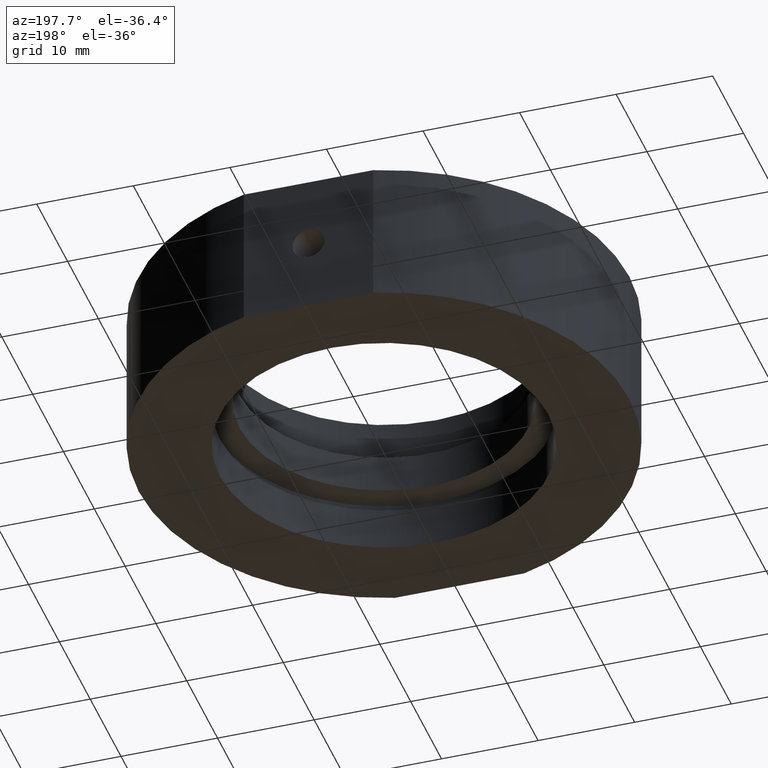
[diagram: clean part render]
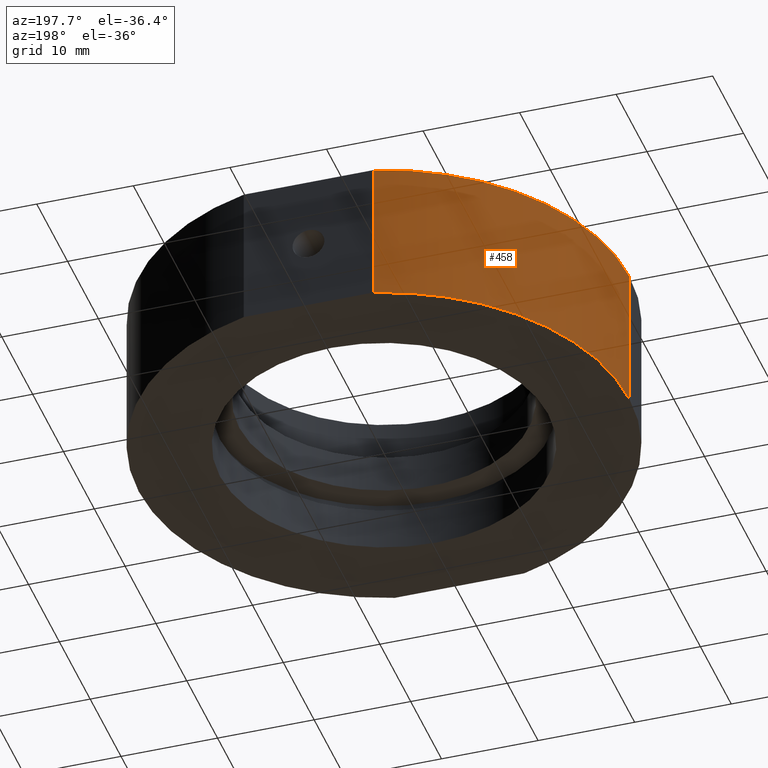
[diagram: same view with one face highlighted and labeled with its STEP entity id]
A machine part, auxiliary view. The second image highlights one B-rep face of the part: STEP entity #458.
In plain terms, the highlighted cylindrical surface (partial cylindrical patch) has radius 25.4 mm, axis along (-0, -0, -1).
Its self-contained STEP definition (entity closure, byte-faithful):
#34 = CARTESIAN_POINT ( 'NONE',  ( 2.992922652324802700E-015, 0.0000000000000000000, -7.500000000000000000 ) ) ;
#86 = CARTESIAN_POINT ( 'NONE',  ( -6.701492371106626300, 24.49999999999999300, -31.93906810035839800 ) ) ;
#99 = EDGE_LOOP ( 'NONE', ( #675, #719, #539, #149 ) ) ;
#132 = AXIS2_PLACEMENT_3D ( 'NONE', #855, #930, #487 ) ;
#149 = ORIENTED_EDGE ( 'NONE', *, *, #202, .F. ) ;
#202 = EDGE_CURVE ( 'NONE', #840, #551, #463, .T. ) ;
#216 = CARTESIAN_POINT ( 'NONE',  ( -6.701492371106589900, 24.50000000000000000, 7.500000000000000000 ) ) ;
#254 = EDGE_CURVE ( 'NONE', #356, #481, #849, .T. ) ;
#255 = LINE ( 'NONE', #864, #828 ) ;
#269 = CARTESIAN_POINT ( 'NONE',  ( 0.0000000000000000000, 0.0000000000000000000, -31.93906810035839800 ) ) ;
#310 = VECTOR ( 'NONE', #470, 1000.000000000000000 ) ;
#324 = DIRECTION ( 'NONE',  ( -1.224646799147350500E-016, -0.0000000000000000000, -1.000000000000000000 ) ) ;
#334 = DIRECTION ( 'NONE',  ( -1.000000000000000000, 0.0000000000000000000, 1.365923996832131600E-016 ) ) ;
#337 = CARTESIAN_POINT ( 'NONE',  ( -25.39999999999999500, 0.0000000000000000000, -7.499999999999996400 ) ) ;
#347 = DIRECTION ( 'NONE',  ( -1.000000000000000000, 0.0000000000000000000, 0.0000000000000000000 ) ) ;
#356 = VERTEX_POINT ( 'NONE', #575 ) ;
#366 = EDGE_CURVE ( 'NONE', #356, #840, #255, .T. ) ;
#458 = ADVANCED_FACE ( 'NONE', ( #738 ), #663, .T. ) ;
#463 = CIRCLE ( 'NONE', #936, 25.39999999999999900 ) ;
#470 = DIRECTION ( 'NONE',  ( -1.224646799147350500E-016, -0.0000000000000000000, -1.000000000000000000 ) ) ;
#481 = VERTEX_POINT ( 'NONE', #216 ) ;
#487 = DIRECTION ( 'NONE',  ( -1.000000000000000000, 0.0000000000000000000, 1.365923996832131600E-016 ) ) ;
#499 = DIRECTION ( 'NONE',  ( -1.224646799147350500E-016, -0.0000000000000000000, -1.000000000000000000 ) ) ;
#539 = ORIENTED_EDGE ( 'NONE', *, *, #790, .T. ) ;
#551 = VERTEX_POINT ( 'NONE', #895 ) ;
#575 = CARTESIAN_POINT ( 'NONE',  ( -25.39999999999999500, 0.0000000000000000000, 7.499999999999996400 ) ) ;
#647 = DIRECTION ( 'NONE',  ( -1.224646799147350500E-016, -0.0000000000000000000, -1.000000000000000000 ) ) ;
#663 = CYLINDRICAL_SURFACE ( 'NONE', #745, 25.39999999999999900 ) ;
#675 = ORIENTED_EDGE ( 'NONE', *, *, #366, .F. ) ;
#719 = ORIENTED_EDGE ( 'NONE', *, *, #254, .T. ) ;
#738 = FACE_OUTER_BOUND ( 'NONE', #99, .T. ) ;
#745 = AXIS2_PLACEMENT_3D ( 'NONE', #269, #647, #347 ) ;
#790 = EDGE_CURVE ( 'NONE', #481, #551, #901, .T. ) ;
#828 = VECTOR ( 'NONE', #499, 1000.000000000000000 ) ;
#840 = VERTEX_POINT ( 'NONE', #337 ) ;
#849 = CIRCLE ( 'NONE', #132, 25.39999999999999900 ) ;
#855 = CARTESIAN_POINT ( 'NONE',  ( 4.829892851045827200E-015, 0.0000000000000000000, 7.499999999999992900 ) ) ;
#864 = CARTESIAN_POINT ( 'NONE',  ( -25.39999999999999900, 0.0000000000000000000, -31.93906810035839800 ) ) ;
#895 = CARTESIAN_POINT ( 'NONE',  ( -6.701492371106592600, 24.50000000000000000, -7.499999999999999100 ) ) ;
#901 = LINE ( 'NONE', #86, #310 ) ;
#930 = DIRECTION ( 'NONE',  ( -1.224646799147350500E-016, -0.0000000000000000000, -1.000000000000000000 ) ) ;
#936 = AXIS2_PLACEMENT_3D ( 'NONE', #34, #324, #334 ) ;